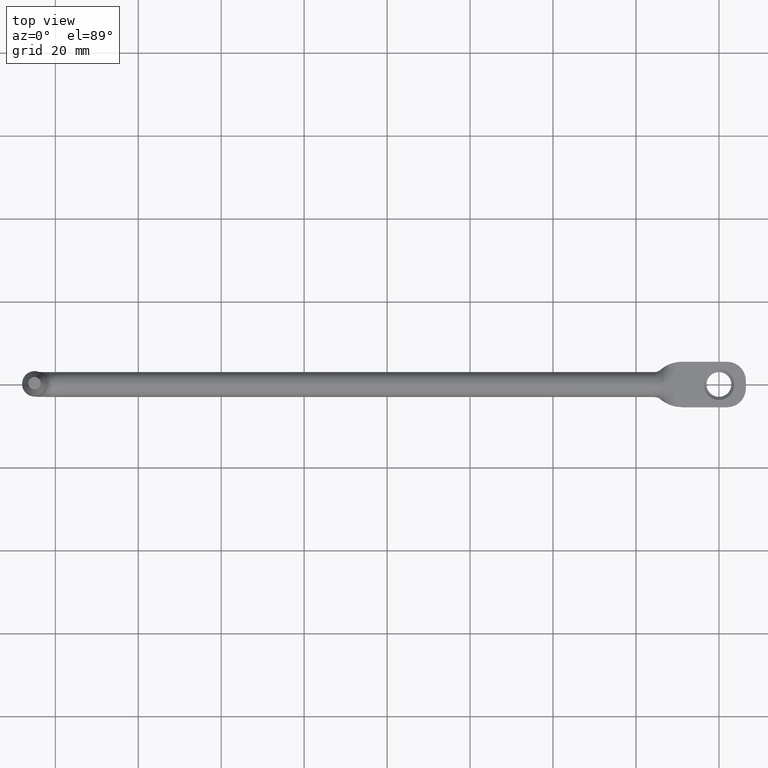
[diagram: clean part render]
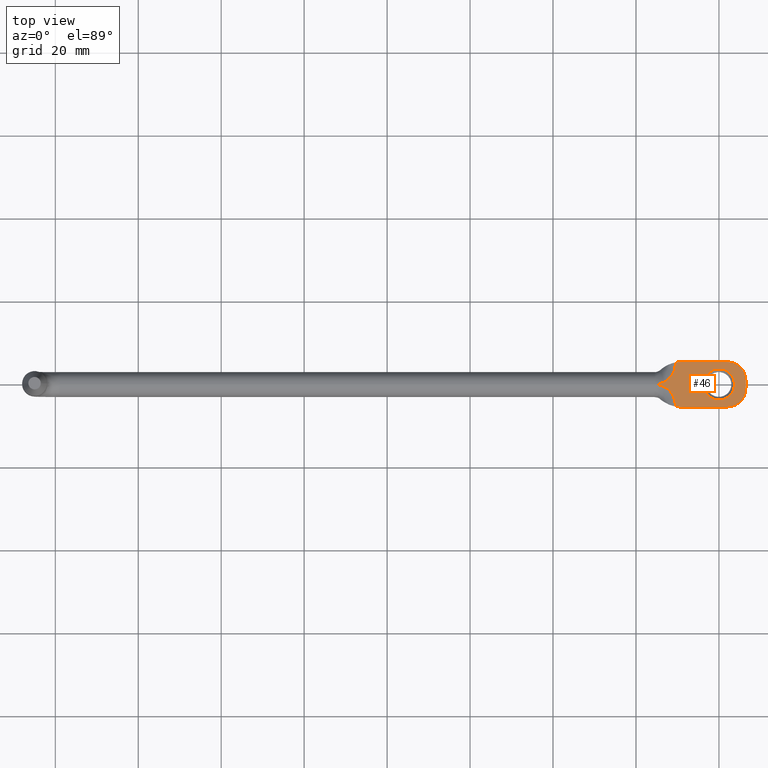
[diagram: same view with one face highlighted and labeled with its STEP entity id]
A machine part, top view. The second image highlights one B-rep face of the part: STEP entity #46.
In plain terms, the highlighted planar face has unit normal (0, 0, -1).
Its self-contained STEP definition (entity closure, byte-faithful):
#46=ADVANCED_FACE('',(#129,#130),#128,.F.);
#128=PLANE('',#455);
#129=FACE_OUTER_BOUND('',#456,.T.);
#130=FACE_BOUND('',#457,.T.);
#452=CARTESIAN_POINT('',(8.70000000000E+00,-6.54000000000E+00,0.00000000000E+00));
#453=DIRECTION('',(0.00000000000E+00,0.00000000000E+00,-1.00000000000E+00));
#454=DIRECTION('',(-1.00000000000E+00,0.00000000000E+00,0.00000000000E+00));
#455=AXIS2_PLACEMENT_3D('',#452,#453,#454);
#456=EDGE_LOOP('',(#686,#687,#688,#689,#690,#691,#692,#693,#694));
#457=EDGE_LOOP('',(#695,#696));
#686=ORIENTED_EDGE('',*,*,#832,.T.);
#687=ORIENTED_EDGE('',*,*,#833,.T.);
#688=ORIENTED_EDGE('',*,*,#809,.F.);
#689=ORIENTED_EDGE('',*,*,#834,.T.);
#690=ORIENTED_EDGE('',*,*,#828,.F.);
#691=ORIENTED_EDGE('',*,*,#835,.F.);
#692=ORIENTED_EDGE('',*,*,#805,.F.);
#693=ORIENTED_EDGE('',*,*,#836,.F.);
#694=ORIENTED_EDGE('',*,*,#837,.F.);
#695=ORIENTED_EDGE('',*,*,#838,.T.);
#696=ORIENTED_EDGE('',*,*,#839,.T.);
#805=EDGE_CURVE('',#909,#910,#911,.T.);
#809=EDGE_CURVE('',#937,#938,#939,.T.);
#828=EDGE_CURVE('',#1068,#1069,#1070,.T.);
#832=EDGE_CURVE('',#1096,#1097,#1098,.T.);
#833=EDGE_CURVE('',#1097,#938,#1104,.T.);
#834=EDGE_CURVE('',#937,#1069,#1110,.T.);
#835=EDGE_CURVE('',#910,#1068,#1116,.T.);
#836=EDGE_CURVE('',#1122,#909,#1123,.T.);
#837=EDGE_CURVE('',#1096,#1122,#1129,.T.);
#838=EDGE_CURVE('',#1135,#1136,#1137,.T.);
#839=EDGE_CURVE('',#1136,#1135,#1143,.T.);
#909=VERTEX_POINT('',#1388);
#910=VERTEX_POINT('',#1389);
#911=CIRCLE('',#1393,4.50000000000E+00);
#937=VERTEX_POINT('',#1406);
#938=VERTEX_POINT('',#1407);
#939=CIRCLE('',#1411,8.00000000000E+00);
#1068=VERTEX_POINT('',#1544);
#1069=VERTEX_POINT('',#1545);
#1070=CIRCLE('',#1549,4.50000000000E+00);
#1096=VERTEX_POINT('',#1562);
#1097=VERTEX_POINT('',#1563);
#1098=CIRCLE('',#1567,5.00000000000E+00);
#1104=CIRCLE('',#1571,5.00000000000E+00);
#1110=LINE('',#1572,#1573);
#1116=LINE('',#1575,#1576);
#1122=VERTEX_POINT('',#1578);
#1123=LINE('',#1579,#1580);
#1129=CIRCLE('',#1585,8.00000000000E+00);
#1135=VERTEX_POINT('',#1586);
#1136=VERTEX_POINT('',#1587);
#1137=CIRCLE('',#1591,3.75000000000E+00);
#1143=CIRCLE('',#1595,3.75000000000E+00);
#1388=CARTESIAN_POINT('',(2.00000000000E+00,5.45000000000E+00,-1.11022302463E-13));
#1389=CARTESIAN_POINT('',(6.50000000000E+00,9.50000000000E-01,-1.11022302463E-13));
#1390=CARTESIAN_POINT('',(2.00000000000E+00,9.50000000000E-01,0.00000000000E+00));
#1391=DIRECTION('',(0.00000000000E+00,0.00000000000E+00,-1.00000000000E+00));
#1392=DIRECTION('',(-0.00000000000E+00,-1.00000000000E+00,-0.00000000000E+00));
#1393=AXIS2_PLACEMENT_3D('',#1390,#1391,#1392);
#1406=CARTESIAN_POINT('',(-8.94275210168E+00,-5.45000000000E+00,-1.11022302463E-13));
#1407=CARTESIAN_POINT('',(-1.05087240553E+01,-5.29523625141E+00,0.00000000000E+00));
#1408=CARTESIAN_POINT('',(-8.94275210168E+00,2.55000000000E+00,0.00000000000E+00));
#1409=DIRECTION('',(0.00000000000E+00,0.00000000000E+00,-1.00000000000E+00));
#1410=DIRECTION('',(-0.00000000000E+00,1.00000000000E+00,-0.00000000000E+00));
#1411=AXIS2_PLACEMENT_3D('',#1408,#1409,#1410);
#1544=CARTESIAN_POINT('',(6.50000000000E+00,-9.50000000000E-01,-1.11022302463E-13));
#1545=CARTESIAN_POINT('',(2.00000000000E+00,-5.45000000000E+00,0.00000000000E+00));
#1546=CARTESIAN_POINT('',(2.00000000000E+00,-9.50000000000E-01,0.00000000000E+00));
#1547=DIRECTION('',(0.00000000000E+00,0.00000000000E+00,-1.00000000000E+00));
#1548=DIRECTION('',(-1.00000000000E+00,-0.00000000000E+00,-0.00000000000E+00));
#1549=AXIS2_PLACEMENT_3D('',#1546,#1547,#1548);
#1562=CARTESIAN_POINT('',(-1.05087240553E+01,5.29523625141E+00,0.00000000000E+00));
#1563=CARTESIAN_POINT('',(-1.55000000000E+01,0.00000000000E+00,0.00000000000E+00));
#1564=CARTESIAN_POINT('',(-1.55000000000E+01,5.00000000000E+00,0.00000000000E+00));
#1565=DIRECTION('',(0.00000000000E+00,0.00000000000E+00,-1.00000000000E+00));
#1566=DIRECTION('',(-9.98255188934E-01,-5.90472502817E-02,-0.00000000000E+00));
#1567=AXIS2_PLACEMENT_3D('',#1564,#1565,#1566);
#1568=CARTESIAN_POINT('',(-1.55000000000E+01,-5.00000000000E+00,0.00000000000E+00));
#1569=DIRECTION('',(0.00000000000E+00,0.00000000000E+00,-1.00000000000E+00));
#1570=DIRECTION('',(-0.00000000000E+00,-1.00000000000E+00,-0.00000000000E+00));
#1571=AXIS2_PLACEMENT_3D('',#1568,#1569,#1570);
#1572=CARTESIAN_POINT('',(-8.94275210168E+00,-5.45000000000E+00,-1.11022302463E-13));
#1573=VECTOR('',#1574,1.09427521017E+01);
#1574=DIRECTION('',(1.00000000000E+00,0.00000000000E+00,1.01457386068E-14));
#1575=CARTESIAN_POINT('',(6.50000000000E+00,9.50000000000E-01,-1.11022302463E-13));
#1576=VECTOR('',#1577,1.90000000000E+00);
#1577=DIRECTION('',(0.00000000000E+00,-1.00000000000E+00,0.00000000000E+00));
#1578=CARTESIAN_POINT('',(-8.94275210168E+00,5.45000000000E+00,-1.11022302463E-13));
#1579=CARTESIAN_POINT('',(-8.94275210168E+00,5.45000000000E+00,-1.11022302463E-13));
#1580=VECTOR('',#1581,1.09427521017E+01);
#1581=DIRECTION('',(1.00000000000E+00,0.00000000000E+00,0.00000000000E+00));
#1582=CARTESIAN_POINT('',(-8.94275210168E+00,-2.55000000000E+00,0.00000000000E+00));
#1583=DIRECTION('',(0.00000000000E+00,0.00000000000E+00,-1.00000000000E+00));
#1584=DIRECTION('',(1.95746494203E-01,-9.80654531427E-01,-0.00000000000E+00));
#1585=AXIS2_PLACEMENT_3D('',#1582,#1583,#1584);
#1586=CARTESIAN_POINT('',(3.75000000000E+00,4.59227382683E-16,0.00000000000E+00));
#1587=CARTESIAN_POINT('',(-3.75000000000E+00,-2.66453525910E-15,0.00000000000E+00));
#1588=CARTESIAN_POINT('',(0.00000000000E+00,0.00000000000E+00,0.00000000000E+00));
#1589=DIRECTION('',(0.00000000000E+00,0.00000000000E+00,-1.00000000000E+00));
#1590=DIRECTION('',(1.00000000000E+00,-0.00000000000E+00,-0.00000000000E+00));
#1591=AXIS2_PLACEMENT_3D('',#1588,#1589,#1590);
#1592=CARTESIAN_POINT('',(0.00000000000E+00,0.00000000000E+00,0.00000000000E+00));
#1593=DIRECTION('',(0.00000000000E+00,0.00000000000E+00,-1.00000000000E+00));
#1594=DIRECTION('',(1.00000000000E+00,-0.00000000000E+00,-0.00000000000E+00));
#1595=AXIS2_PLACEMENT_3D('',#1592,#1593,#1594);